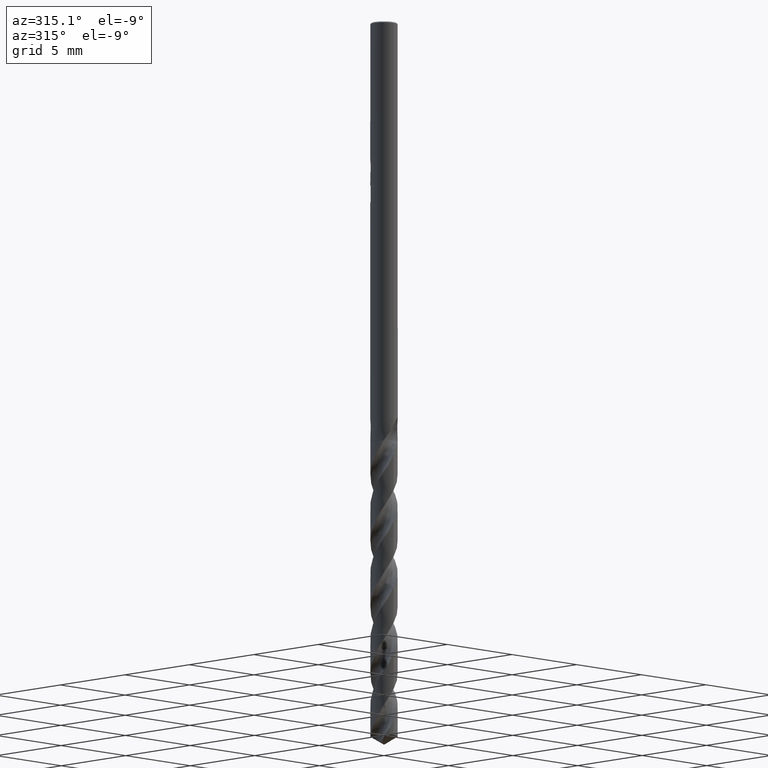
[diagram: clean part render]
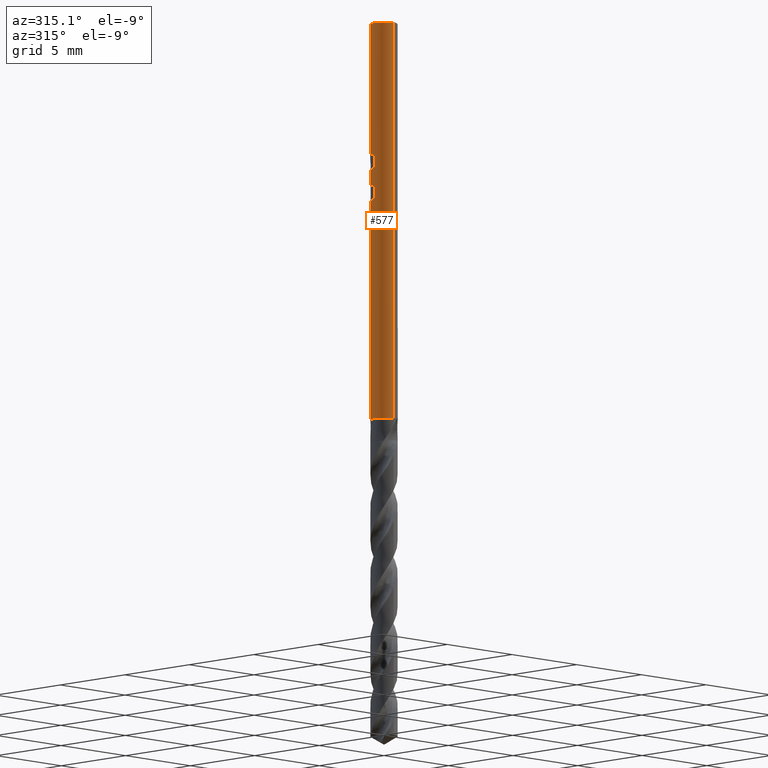
[diagram: same view with one face highlighted and labeled with its STEP entity id]
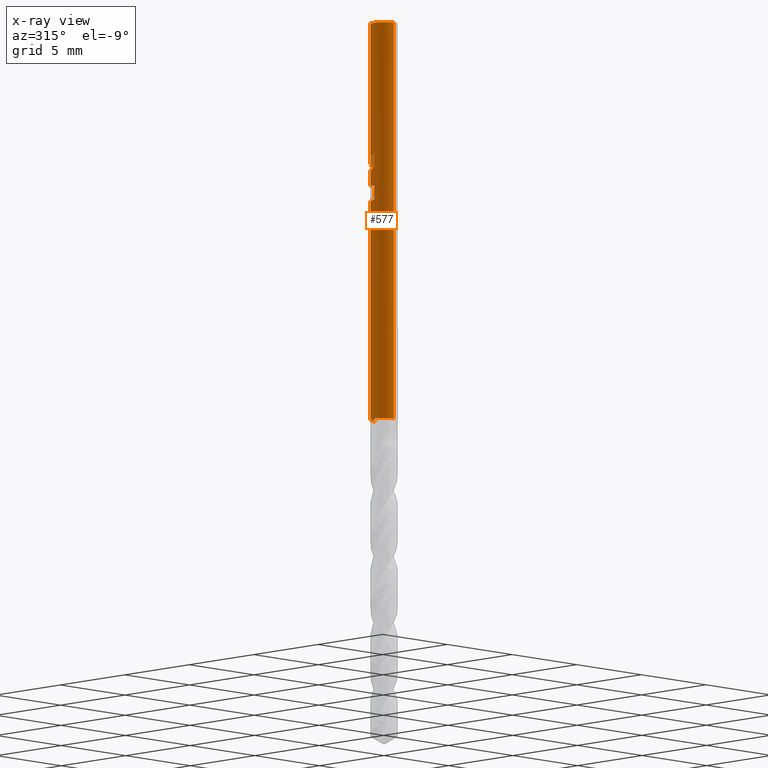
[diagram: x-ray of the same camera — body ghosted, the highlighted face saturated]
A machine part, auxiliary view. The second image highlights one B-rep face of the part: STEP entity #577.
The next image is the same camera in x-ray: the body ghosted, the highlighted face saturated — about 0% of this face is hidden behind the body in this view.
In plain terms, the highlighted cylindrical surface (edge-blend (fillet) strip) has radius 0.75 mm, axis along (-0, -0, 1).
Its self-contained STEP definition (entity closure, byte-faithful):
#285=VERTEX_POINT('',#788);
#289=VERTEX_POINT('',#792);
#297=VERTEX_POINT('',#801);
#317=VERTEX_POINT('',#821);
#321=VERTEX_POINT('',#825);
#329=EDGE_CURVE('',#297,#607,#834,.T.);
#343=VERTEX_POINT('',#849);
#353=EDGE_CURVE('',#289,#343,#859,.T.);
#381=EDGE_CURVE('',#673,#321,#889,.T.);
#393=EDGE_CURVE('',#395,#745,#904,.T.);
#395=VERTEX_POINT('',#906);
#405=EDGE_CURVE('',#509,#343,#917,.T.);
#421=VERTEX_POINT('',#934);
#487=EDGE_CURVE('',#725,#681,#1009,.T.);
#495=EDGE_CURVE('',#681,#289,#1017,.T.);
#509=VERTEX_POINT('',#1033);
#545=VERTEX_POINT('',#1074);
#549=EDGE_CURVE('',#745,#583,#1078,.T.);
#557=EDGE_CURVE('',#285,#421,#1087,.T.);
#577=ADVANCED_FACE('',(#1108),#1109,.T.);
#583=VERTEX_POINT('',#1115);
#587=EDGE_CURVE('',#297,#285,#1119,.T.);
#607=VERTEX_POINT('',#1140);
#617=EDGE_CURVE('',#583,#545,#1152,.T.);
#627=EDGE_CURVE('',#545,#673,#1162,.T.);
#629=EDGE_CURVE('',#509,#607,#1164,.T.);
#645=EDGE_CURVE('',#321,#725,#1181,.T.);
#649=EDGE_CURVE('',#421,#317,#1185,.T.);
#673=VERTEX_POINT('',#1209);
#681=VERTEX_POINT('',#1217);
#701=EDGE_CURVE('',#317,#395,#1239,.T.);
#725=VERTEX_POINT('',#1266);
#745=VERTEX_POINT('',#1290);
#788=CARTESIAN_POINT('',(9.18454765366783E-017,-0.75,-0.0600000000000005));
#792=CARTESIAN_POINT('',(-1.0146208194845E-016,0.75,-10.0310253601033));
#801=CARTESIAN_POINT('',(9.18455486407948E-017,-0.75,-22.0));
#821=CARTESIAN_POINT('',(-5.78530632776888E-017,0.75,-8.02326881177431));
#825=CARTESIAN_POINT('',(-9.18329467486481E-017,0.75,-8.71289113365783));
#834=CIRCLE('',#1852,0.75);
#849=CARTESIAN_POINT('',(-9.18454044325618E-017,0.75,-22.0));
#859=LINE('',#2122,#2123);
#889=LINE('',#2393,#2394);
#904=B_SPLINE_CURVE_WITH_KNOTS('',3,(#2969,#2970,#2971,#2972,#2973,#2974,#2975,#2976,#2977,#2978,#2979,#2980,#2981,#2982,#2983,#2984,#2985,#2986,#2987,#2988,#2989,#2990,#2991,#2992,#2993,#2994,#2995,#2996),.UNSPECIFIED.,.F.,.F.,(4,2,2,2,2,2,2,2,2,2,2,2,2,4),(4.05433291386163,4.30394743751851,4.55356196117539,4.80317648483228,4.9523820823497,5.10158767986712,5.32260918267572,5.54363068548431,5.77372791715315,6.003825148822,6.22987315254989,6.45592115627777,6.68196916000565,6.90801716373354),.UNSPECIFIED.);
#906=CARTESIAN_POINT('',(-0.486378944396146,0.570907630388092,-7.64328374827441));
#917=CIRCLE('',#3010,0.75);
#934=CARTESIAN_POINT('',(0.0,0.75,-0.0600000000000005));
#1009=LINE('',#3984,#3985);
#1017=B_SPLINE_CURVE_WITH_KNOTS('',3,(#3997,#3998,#3999,#4000,#4001,#4002,#4003,#4004,#4005,#4006,#4007,#4008,#4009,#4010,#4011,#4012,#4013),.UNSPECIFIED.,.F.,.F.,(4,3,2,2,2,2,2,4),(-0.28737094661706,0.0,0.287370946617061,0.574741893234121,0.860868530668837,1.14699516810355,1.4350491308222,1.72310309354084),.UNSPECIFIED.);
#1033=CARTESIAN_POINT('',(-0.259856016207045,0.703544491017451,-22.0));
#1074=CARTESIAN_POINT('',(-0.75,0.0,-8.09657379800989));
#1078=CIRCLE('',#4259,0.75);
#1087=CIRCLE('',#4282,0.75);
#1108=FACE_OUTER_BOUND('',#4624,.T.);
#1109=CYLINDRICAL_SURFACE('',#4625,0.75);
#1115=CARTESIAN_POINT('',(-0.75,0.0,-7.31712219869707));
#1119=LINE('',#4637,#4638);
#1140=CARTESIAN_POINT('',(-0.566158218177637,0.491899249836715,-22.0));
#1152=LINE('',#6166,#6167);
#1162=B_SPLINE_CURVE_WITH_KNOTS('',3,(#6410,#6411,#6412,#6413,#6414,#6415,#6416,#6417,#6418,#6419,#6420,#6421,#6422,#6423,#6424,#6425,#6426,#6427,#6428,#6429,#6430),.UNSPECIFIED.,.F.,.F.,(4,3,2,2,2,2,2,2,2,4),(-0.150056912037751,0.0,0.150056912037752,0.300113824075504,0.600227648151007,0.906208818513322,1.21218998887564,1.49644948384839,1.78070897882115,2.07163050219727),.UNSPECIFIED.);
#1164=B_SPLINE_CURVE_WITH_KNOTS('',3,(#6433,#6434,#6435,#6436,#6437,#6438,#6439,#6440,#6441,#6442,#6443,#6444),.UNSPECIFIED.,.F.,.F.,(4,2,2,2,2,4),(0.0,0.139198338031164,0.224391982269465,0.29488833799866,0.36314855186799,0.436125188365014),.UNSPECIFIED.);
#1181=ELLIPSE('',#6506,0.836196324032145,0.75);
#1185=LINE('',#6667,#6668);
#1209=CARTESIAN_POINT('',(5.89297921147408E-017,0.75,-8.50008015518815));
#1217=CARTESIAN_POINT('',(-0.75,0.0,-9.86267183969037));
#1239=B_SPLINE_CURVE_WITH_KNOTS('',3,(#7863,#7864,#7865,#7866,#7867,#7868,#7869,#7870,#7871,#7872,#7873,#7874,#7875,#7876,#7877,#7878,#7879,#7880,#7881,#7882,#7883,#7884,#7885,#7886,#7887,#7888,#7889,#7890),.UNSPECIFIED.,.F.,.F.,(4,2,2,2,2,2,2,2,2,2,2,2,2,4),(4.05433291386163,4.30394743751851,4.55356196117539,4.80317648483228,4.9523820823497,5.10158767986712,5.32260918267572,5.54363068548431,5.77372791715315,6.003825148822,6.22987315254989,6.45592115627777,6.68196916000565,6.90801716373354),.UNSPECIFIED.);
#1266=CARTESIAN_POINT('',(-0.75,0.0,-9.08265361461672));
#1290=CARTESIAN_POINT('',(-0.562333990228013,0.496266544746108,-7.31712219869707));
#1852=AXIS2_PLACEMENT_3D('',#8640,#8641,#8642);
#2122=CARTESIAN_POINT('',(-9.18454044325618E-017,0.75,-6.03));
#2123=VECTOR('',#8663,1.0);
#2393=CARTESIAN_POINT('',(-9.18454044325618E-017,0.75,-6.03));
#2394=VECTOR('',#8686,1.0);
#2969=CARTESIAN_POINT('',(0.709048094295613,-0.244439767582445,-7.78153378660093));
#2970=CARTESIAN_POINT('',(0.73571057727536,-0.16709962518411,-7.7495010773497));
#2971=CARTESIAN_POINT('',(0.75,-0.0832048412189605,-7.72731398825078));
#2972=CARTESIAN_POINT('',(0.75,0.0832048412189605,-7.72731398825078));
#2973=CARTESIAN_POINT('',(0.73571057727536,0.16709962518411,-7.7495010773497));
#2974=CARTESIAN_POINT('',(0.682385611316018,0.32177990998068,-7.81356649585252));
#2975=CARTESIAN_POINT('',(0.643138244618554,0.393123099305739,-7.85391146030402));
#2976=CARTESIAN_POINT('',(0.570432780122505,0.489012517282101,-7.91041092306115));
#2977=CARTESIAN_POINT('',(0.537102699526215,0.525874450023509,-7.93300099063537));
#2978=CARTESIAN_POINT('',(0.462178255999755,0.592802255697634,-7.97369650586591));
#2979=CARTESIAN_POINT('',(0.420520566175264,0.622860274579999,-7.99169818808889));
#2980=CARTESIAN_POINT('',(0.318020510963384,0.682929974663269,-8.02509218977419));
#2981=CARTESIAN_POINT('',(0.244964989813229,0.71313442203293,-8.03908274992128));
#2982=CARTESIAN_POINT('',(0.0931734638004512,0.748256143896572,-8.04173159310686));
#2983=CARTESIAN_POINT('',(0.0144301200117672,0.753159066408424,-8.03015435721521));
#2984=CARTESIAN_POINT('',(-0.128872104140218,0.74247170024054,-7.98585689376399));
#2985=CARTESIAN_POINT('',(-0.2015610991314,0.72558795716508,-7.94989030983147));
#2986=CARTESIAN_POINT('',(-0.328521007746086,0.677627265089983,-7.85797358157142));
#2987=CARTESIAN_POINT('',(-0.382942679574438,0.646862785006073,-7.80206896357968));
#2988=CARTESIAN_POINT('',(-0.465874095551028,0.589871171910229,-7.68808187741892));
#2989=CARTESIAN_POINT('',(-0.501637246001275,0.558572950834447,-7.62074855895039));
#2990=CARTESIAN_POINT('',(-0.54987468763872,0.511157227024796,-7.47539951039169));
#2991=CARTESIAN_POINT('',(-0.562348199187247,0.496250443698402,-7.39699134716274));
#2992=CARTESIAN_POINT('',(-0.562348199187247,0.496250443698402,-7.24629267801082));
#2993=CARTESIAN_POINT('',(-0.54987468763872,0.511157227024796,-7.16788451478187));
#2994=CARTESIAN_POINT('',(-0.501637246001276,0.558572950834447,-7.02253546622318));
#2995=CARTESIAN_POINT('',(-0.465874095551029,0.589871171910229,-6.95520214775465));
#2996=CARTESIAN_POINT('',(-0.424776481078457,0.618114019516305,-6.89871453969054));
#3010=AXIS2_PLACEMENT_3D('',#8719,#8720,#8721);
#3984=CARTESIAN_POINT('',(-0.75,0.0,-9.47259986470786));
#3985=VECTOR('',#8852,1.0);
#3997=CARTESIAN_POINT('',(-0.692055193933249,-0.289066789081715,-9.88990727502224));
#3998=CARTESIAN_POINT('',(-0.730570369964297,-0.196857390143947,-9.87272027568375));
#3999=CARTESIAN_POINT('',(-0.75,-0.0957903155390201,-9.86267183969037));
#4000=CARTESIAN_POINT('',(-0.75,0.0,-9.86267183969037));
#4001=CARTESIAN_POINT('',(-0.75,0.0957903155390202,-9.86267183969037));
#4002=CARTESIAN_POINT('',(-0.730570369964297,0.196857390143948,-9.87272027568375));
#4003=CARTESIAN_POINT('',(-0.653540017902506,0.381276188019529,-9.90709427436116));
#4004=CARTESIAN_POINT('',(-0.59598838280904,0.464775431168711,-9.93073479546527));
#4005=CARTESIAN_POINT('',(-0.464122433811407,0.596433888401198,-9.97341744627364));
#4006=CARTESIAN_POINT('',(-0.380661668868162,0.653885934545166,-9.99545133895396));
#4007=CARTESIAN_POINT('',(-0.196325768359133,0.730702631521262,-10.025276499728));
#4008=CARTESIAN_POINT('',(-0.0953610829046801,0.75,-10.0326862653089));
#4009=CARTESIAN_POINT('',(0.096003427245049,0.75,-10.0293532671781));
#4010=CARTESIAN_POINT('',(0.197270784658573,0.730468420915227,-10.0183072393365));
#4011=CARTESIAN_POINT('',(0.381767163621633,0.653263870552839,-9.98159128112167));
#4012=CARTESIAN_POINT('',(0.46510257787453,0.595669891013887,-9.95629091980264));
#4013=CARTESIAN_POINT('',(0.530784429884974,0.529875352315696,-9.93228202704358));
#4259=AXIS2_PLACEMENT_3D('',#8941,#8942,#8943);
#4282=AXIS2_PLACEMENT_3D('',#8954,#8955,#8956);
#4624=EDGE_LOOP('',(#8969,#8970,#8971,#8972,#8973,#8974,#8975,#8976,#8977,#8978,#8979,#8980,#8981,#8982,#8983,#8984));
#4625=AXIS2_PLACEMENT_3D('',#8985,#8986,#8987);
#4637=CARTESIAN_POINT('',(9.18455486407948E-017,-0.75,-6.03));
#4638=VECTOR('',#8991,1.0);
#6166=CARTESIAN_POINT('',(-0.75,0.0,-7.71751523540434));
#6167=VECTOR('',#9045,1.0);
#6410=CARTESIAN_POINT('',(-0.735052808157177,-0.148987815677149,-8.1136641232067));
#6411=CARTESIAN_POINT('',(-0.744944855446113,-0.100183974415684,-8.10257039658027));
#6412=CARTESIAN_POINT('',(-0.75,-0.0500189706792504,-8.09657379800989));
#6413=CARTESIAN_POINT('',(-0.75,0.0,-8.09657379800989));
#6414=CARTESIAN_POINT('',(-0.75,0.0500189706792506,-8.09657379800989));
#6415=CARTESIAN_POINT('',(-0.744944855446112,0.100183974415685,-8.10257039658027));
#6416=CARTESIAN_POINT('',(-0.725160760868241,0.197791656938616,-8.12475784983313));
#6417=CARTESIAN_POINT('',(-0.710443073956775,0.245255653683169,-8.14086487930267));
#6418=CARTESIAN_POINT('',(-0.653808901377444,0.380201304492585,-8.19790302315212));
#6419=CARTESIAN_POINT('',(-0.598766644600075,0.460448403928181,-8.24714524656415));
#6420=CARTESIAN_POINT('',(-0.472169314245362,0.589836911060214,-8.33685881162628));
#6421=CARTESIAN_POINT('',(-0.390415231151059,0.648285976874139,-8.38451453916564));
#6422=CARTESIAN_POINT('',(-0.205033058969492,0.728464303239341,-8.45990544090423));
#6423=CARTESIAN_POINT('',(-0.101192951963735,0.75,-8.48732452518028));
#6424=CARTESIAN_POINT('',(0.0940092404573553,0.75,-8.51193026001585));
#6425=CARTESIAN_POINT('',(0.194378079524182,0.73114919742979,-8.51206528475735));
#6426=CARTESIAN_POINT('',(0.377966381372218,0.655365071548797,-8.49046927700548));
#6427=CARTESIAN_POINT('',(0.461274397971056,0.598508790733799,-8.46922357390298));
#6428=CARTESIAN_POINT('',(0.593945543928422,0.467566035793355,-8.42437263374246));
#6429=CARTESIAN_POINT('',(0.652096837228334,0.383881889460003,-8.39747889841322));
#6430=CARTESIAN_POINT('',(0.691120815605099,0.291293697558569,-8.37731131192198));
#6433=CARTESIAN_POINT('',(-0.259856016207044,0.703544491017451,-22.0));
#6434=CARTESIAN_POINT('',(-0.292136551302397,0.691621590109252,-21.9688757316879));
#6435=CARTESIAN_POINT('',(-0.328180013494063,0.675736708160223,-21.9398984335603));
#6436=CARTESIAN_POINT('',(-0.388271283806626,0.642205559011763,-21.9108350821573));
#6437=CARTESIAN_POINT('',(-0.411565386291542,0.62762719205773,-21.903902871146));
#6438=CARTESIAN_POINT('',(-0.453741148319197,0.597635420185953,-21.9027697116251));
#6439=CARTESIAN_POINT('',(-0.471667759672231,0.583534663516707,-21.9066167307762));
#6440=CARTESIAN_POINT('',(-0.504504590747578,0.555363061667346,-21.922596018712));
#6441=CARTESIAN_POINT('',(-0.518773099581344,0.541934730289303,-21.9341075752196));
#6442=CARTESIAN_POINT('',(-0.544843919218005,0.51576104784881,-21.963119748671));
#6443=CARTESIAN_POINT('',(-0.556326829065903,0.503214822575559,-21.9808809852541));
#6444=CARTESIAN_POINT('',(-0.566158218177638,0.491899249836714,-22.0));
#6506=AXIS2_PLACEMENT_3D('',#9056,#9057,#9058);
#6667=CARTESIAN_POINT('',(-9.18454044325618E-017,0.75,-6.03));
#6668=VECTOR('',#9059,1.0);
#7863=CARTESIAN_POINT('',(0.709048094295613,-0.244439767582445,-7.78153378660093));
#7864=CARTESIAN_POINT('',(0.73571057727536,-0.16709962518411,-7.7495010773497));
#7865=CARTESIAN_POINT('',(0.75,-0.0832048412189605,-7.72731398825078));
#7866=CARTESIAN_POINT('',(0.75,0.0832048412189605,-7.72731398825078));
#7867=CARTESIAN_POINT('',(0.73571057727536,0.16709962518411,-7.7495010773497));
#7868=CARTESIAN_POINT('',(0.682385611316018,0.32177990998068,-7.81356649585252));
#7869=CARTESIAN_POINT('',(0.643138244618554,0.393123099305739,-7.85391146030402));
#7870=CARTESIAN_POINT('',(0.570432780122505,0.489012517282101,-7.91041092306115));
#7871=CARTESIAN_POINT('',(0.537102699526215,0.525874450023509,-7.93300099063537));
#7872=CARTESIAN_POINT('',(0.462178255999755,0.592802255697634,-7.97369650586591));
#7873=CARTESIAN_POINT('',(0.420520566175264,0.622860274579999,-7.99169818808889));
#7874=CARTESIAN_POINT('',(0.318020510963384,0.682929974663269,-8.02509218977419));
#7875=CARTESIAN_POINT('',(0.244964989813229,0.71313442203293,-8.03908274992128));
#7876=CARTESIAN_POINT('',(0.0931734638004512,0.748256143896572,-8.04173159310686));
#7877=CARTESIAN_POINT('',(0.0144301200117672,0.753159066408424,-8.03015435721521));
#7878=CARTESIAN_POINT('',(-0.128872104140218,0.74247170024054,-7.98585689376399));
#7879=CARTESIAN_POINT('',(-0.2015610991314,0.72558795716508,-7.94989030983147));
#7880=CARTESIAN_POINT('',(-0.328521007746086,0.677627265089983,-7.85797358157142));
#7881=CARTESIAN_POINT('',(-0.382942679574438,0.646862785006073,-7.80206896357968));
#7882=CARTESIAN_POINT('',(-0.465874095551028,0.589871171910229,-7.68808187741892));
#7883=CARTESIAN_POINT('',(-0.501637246001275,0.558572950834447,-7.62074855895039));
#7884=CARTESIAN_POINT('',(-0.54987468763872,0.511157227024796,-7.47539951039169));
#7885=CARTESIAN_POINT('',(-0.562348199187247,0.496250443698402,-7.39699134716274));
#7886=CARTESIAN_POINT('',(-0.562348199187247,0.496250443698402,-7.24629267801082));
#7887=CARTESIAN_POINT('',(-0.54987468763872,0.511157227024796,-7.16788451478187));
#7888=CARTESIAN_POINT('',(-0.501637246001276,0.558572950834447,-7.02253546622318));
#7889=CARTESIAN_POINT('',(-0.465874095551029,0.589871171910229,-6.95520214775465));
#7890=CARTESIAN_POINT('',(-0.424776481078457,0.618114019516305,-6.89871453969054));
#8640=CARTESIAN_POINT('',(0.0,0.0,-22.0));
#8641=DIRECTION('',(0.0,0.0,-1.0));
#8642=DIRECTION('',(0.0,-1.0,0.0));
#8663=DIRECTION('',(0.0,0.0,-1.0));
#8686=DIRECTION('',(0.0,0.0,-1.0));
#8719=CARTESIAN_POINT('',(0.0,0.0,-22.0));
#8720=DIRECTION('',(0.0,0.0,-1.0));
#8721=DIRECTION('',(0.0,-1.0,0.0));
#8852=DIRECTION('',(0.0,0.0,-1.0));
#8941=CARTESIAN_POINT('',(0.0,0.0,-7.31712219869707));
#8942=DIRECTION('',(0.0,-0.0,1.0));
#8943=DIRECTION('',(0.0,1.0,0.0));
#8954=CARTESIAN_POINT('',(0.0,0.0,-0.0600000000000005));
#8955=DIRECTION('',(0.0,0.0,-1.0));
#8956=DIRECTION('',(0.0,1.0,0.0));
#8969=ORIENTED_EDGE('',*,*,#649,.T.);
#8970=ORIENTED_EDGE('',*,*,#701,.T.);
#8971=ORIENTED_EDGE('',*,*,#393,.T.);
#8972=ORIENTED_EDGE('',*,*,#549,.T.);
#8973=ORIENTED_EDGE('',*,*,#617,.T.);
#8974=ORIENTED_EDGE('',*,*,#627,.T.);
#8975=ORIENTED_EDGE('',*,*,#381,.T.);
#8976=ORIENTED_EDGE('',*,*,#645,.T.);
#8977=ORIENTED_EDGE('',*,*,#487,.T.);
#8978=ORIENTED_EDGE('',*,*,#495,.T.);
#8979=ORIENTED_EDGE('',*,*,#353,.T.);
#8980=ORIENTED_EDGE('',*,*,#405,.F.);
#8981=ORIENTED_EDGE('',*,*,#629,.T.);
#8982=ORIENTED_EDGE('',*,*,#329,.F.);
#8983=ORIENTED_EDGE('',*,*,#587,.T.);
#8984=ORIENTED_EDGE('',*,*,#557,.T.);
#8985=CARTESIAN_POINT('',(0.0,0.0,-6.03));
#8986=DIRECTION('',(-0.0,-0.0,1.0));
#8987=DIRECTION('',(0.0,1.0,0.0));
#8991=DIRECTION('',(-0.0,-0.0,1.0));
#9045=DIRECTION('',(0.0,0.0,-1.0));
#9056=CARTESIAN_POINT('',(0.0,0.0,-8.71289113365783));
#9057=DIRECTION('',(-0.442195774284071,0.0,0.896918556617774));
#9058=DIRECTION('',(0.896918556617774,-0.0,0.442195774284071));
#9059=DIRECTION('',(0.0,0.0,-1.0));